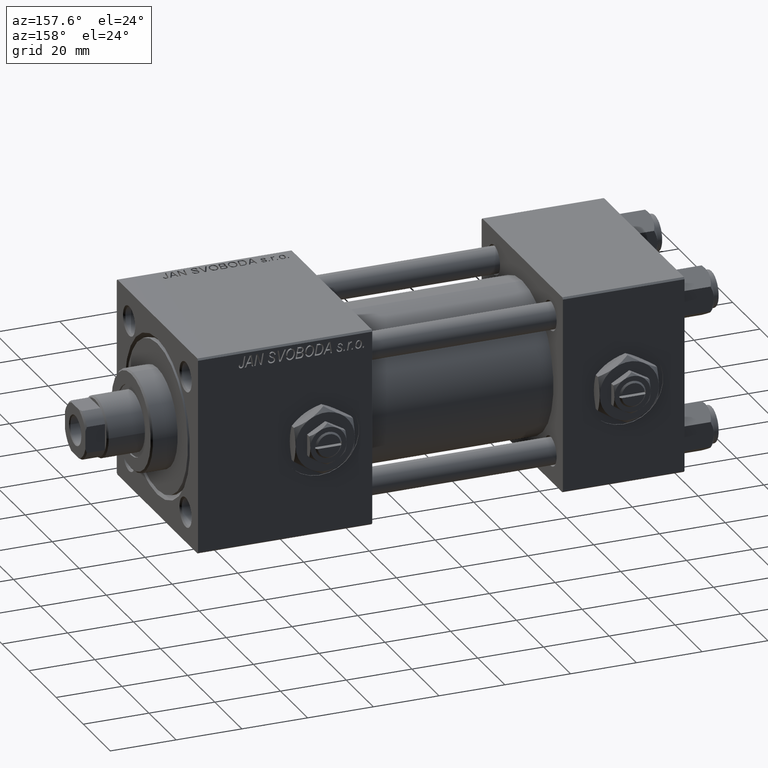
[diagram: clean part render]
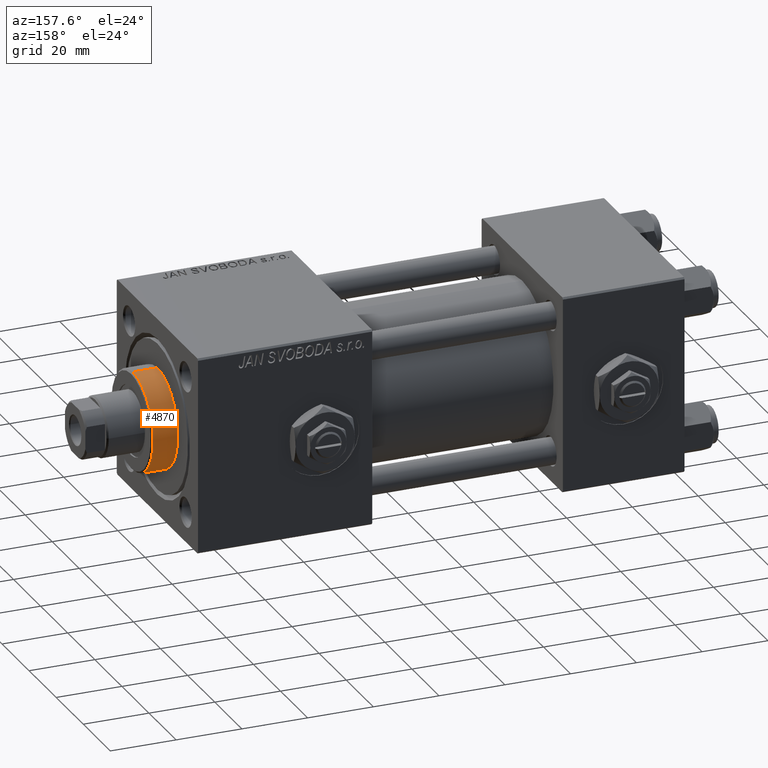
[diagram: same view with one face highlighted and labeled with its STEP entity id]
A machine part, auxiliary view. The second image highlights one B-rep face of the part: STEP entity #4870.
In plain terms, the highlighted cylindrical surface (partial cylindrical patch) has radius 15 mm, axis along (-1, -0, -0).
Its self-contained STEP definition (entity closure, byte-faithful):
#3716 = CARTESIAN_POINT ( 'NONE',  ( 15.00000000000000000, 1.836970198721029589E-15, 36.20000000000000284 ) ) ;
#4374 = DIRECTION ( 'NONE',  ( 0.000000000000000000, 0.000000000000000000, -1.000000000000000000 ) ) ;
#4483 = ORIENTED_EDGE ( 'NONE', *, *, #11016, .T. ) ;
#4870 = ADVANCED_FACE ( 'NONE', ( #21917 ), #22174, .T. ) ;
#4969 = VERTEX_POINT ( 'NONE', #31175 ) ;
#5383 = CARTESIAN_POINT ( 'NONE',  ( -15.00000000000000000, 0.000000000000000000, 36.20000000000000284 ) ) ;
#5677 = DIRECTION ( 'NONE',  ( 1.000000000000000000, 0.000000000000000000, 0.000000000000000000 ) ) ;
#5937 = EDGE_LOOP ( 'NONE', ( #4483, #51777, #28578, #42167 ) ) ;
#6760 = CARTESIAN_POINT ( 'NONE',  ( 15.00000000000000000, 1.836970198721029589E-15, 36.69999999999999574 ) ) ;
#8829 = VERTEX_POINT ( 'NONE', #5383 ) ;
#9138 = CARTESIAN_POINT ( 'NONE',  ( 0.000000000000000000, 0.000000000000000000, 36.20000000000000284 ) ) ;
#9750 = DIRECTION ( 'NONE',  ( -0.000000000000000000, -0.000000000000000000, -1.000000000000000000 ) ) ;
#10700 = LINE ( 'NONE', #22585, #14304 ) ;
#11016 = EDGE_CURVE ( 'NONE', #8829, #34821, #18315, .T. ) ;
#14304 = VECTOR ( 'NONE', #26823, 1000.000000000000000 ) ;
#16611 = CARTESIAN_POINT ( 'NONE',  ( -15.00000000000000000, 0.000000000000000000, 28.69999999999999929 ) ) ;
#17918 = AXIS2_PLACEMENT_3D ( 'NONE', #34257, #50355, #5677 ) ;
#18315 = CIRCLE ( 'NONE', #35237, 15.00000000000000000 ) ;
#20533 = EDGE_CURVE ( 'NONE', #34821, #4969, #30584, .T. ) ;
#21325 = VERTEX_POINT ( 'NONE', #16611 ) ;
#21917 = FACE_OUTER_BOUND ( 'NONE', #5937, .T. ) ;
#22174 = CYLINDRICAL_SURFACE ( 'NONE', #45120, 15.00000000000000000 ) ;
#22585 = CARTESIAN_POINT ( 'NONE',  ( -15.00000000000000000, 0.000000000000000000, 36.69999999999999574 ) ) ;
#22766 = VECTOR ( 'NONE', #46165, 1000.000000000000000 ) ;
#25889 = DIRECTION ( 'NONE',  ( -1.000000000000000000, 0.000000000000000000, 0.000000000000000000 ) ) ;
#26606 = EDGE_CURVE ( 'NONE', #4969, #21325, #28944, .T. ) ;
#26823 = DIRECTION ( 'NONE',  ( -0.000000000000000000, -0.000000000000000000, -1.000000000000000000 ) ) ;
#28578 = ORIENTED_EDGE ( 'NONE', *, *, #26606, .T. ) ;
#28944 = CIRCLE ( 'NONE', #17918, 15.00000000000000000 ) ;
#30584 = LINE ( 'NONE', #6760, #22766 ) ;
#31175 = CARTESIAN_POINT ( 'NONE',  ( 15.00000000000000000, 1.836970198721029589E-15, 28.69999999999999929 ) ) ;
#33728 = DIRECTION ( 'NONE',  ( 1.000000000000000000, 0.000000000000000000, 0.000000000000000000 ) ) ;
#33831 = CARTESIAN_POINT ( 'NONE',  ( 0.000000000000000000, 0.000000000000000000, 36.69999999999999574 ) ) ;
#34257 = CARTESIAN_POINT ( 'NONE',  ( 0.000000000000000000, 0.000000000000000000, 28.69999999999999929 ) ) ;
#34821 = VERTEX_POINT ( 'NONE', #3716 ) ;
#35237 = AXIS2_PLACEMENT_3D ( 'NONE', #9138, #4374, #33728 ) ;
#42167 = ORIENTED_EDGE ( 'NONE', *, *, #48789, .F. ) ;
#45120 = AXIS2_PLACEMENT_3D ( 'NONE', #33831, #9750, #25889 ) ;
#46165 = DIRECTION ( 'NONE',  ( -0.000000000000000000, -0.000000000000000000, -1.000000000000000000 ) ) ;
#48789 = EDGE_CURVE ( 'NONE', #8829, #21325, #10700, .T. ) ;
#50355 = DIRECTION ( 'NONE',  ( 0.000000000000000000, 0.000000000000000000, 1.000000000000000000 ) ) ;
#51777 = ORIENTED_EDGE ( 'NONE', *, *, #20533, .T. ) ;